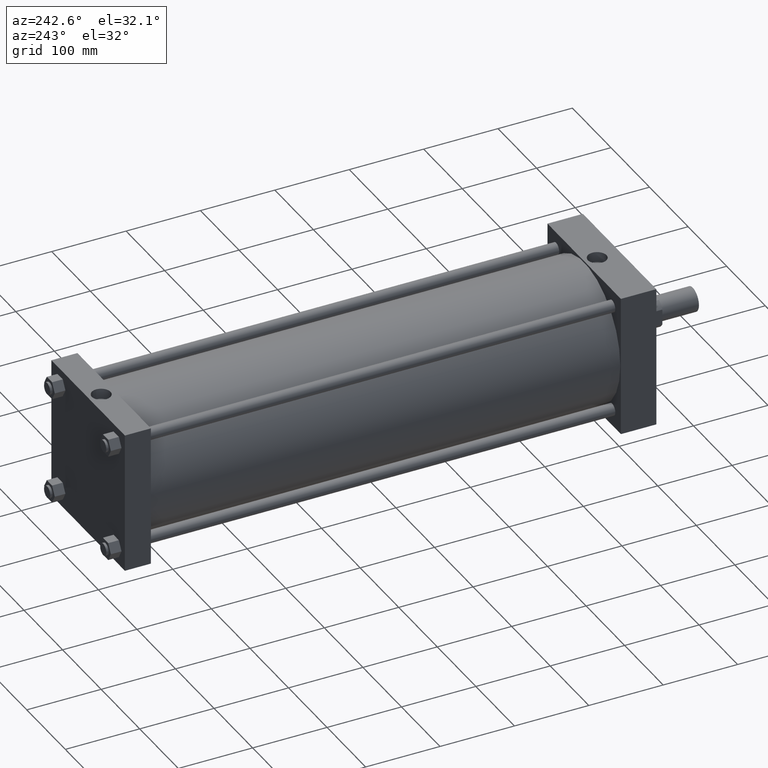
[diagram: clean part render]
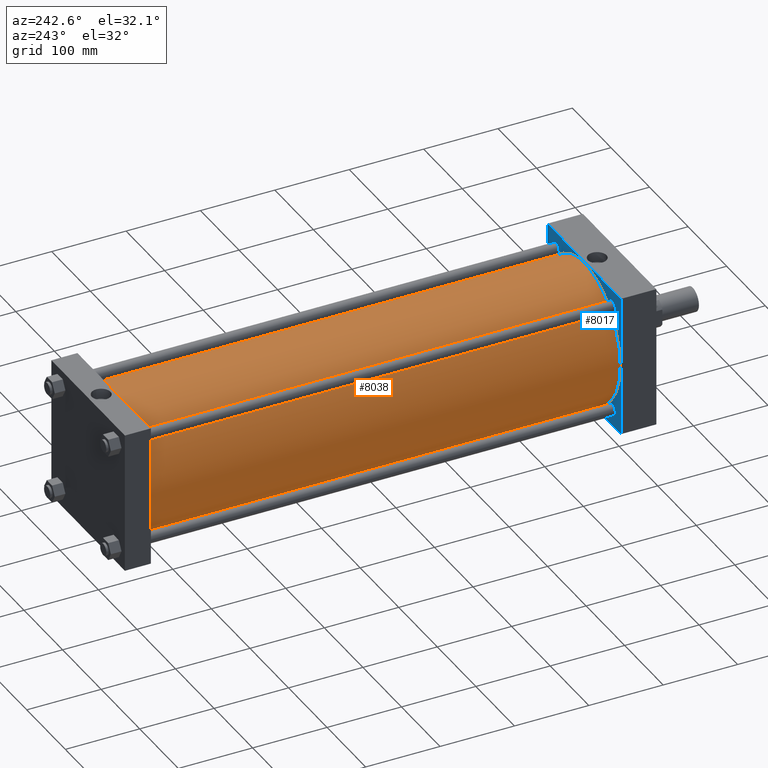
[diagram: same view with the hole feature highlighted: cylindrical wall and planar end face, labeled with their STEP entity ids]
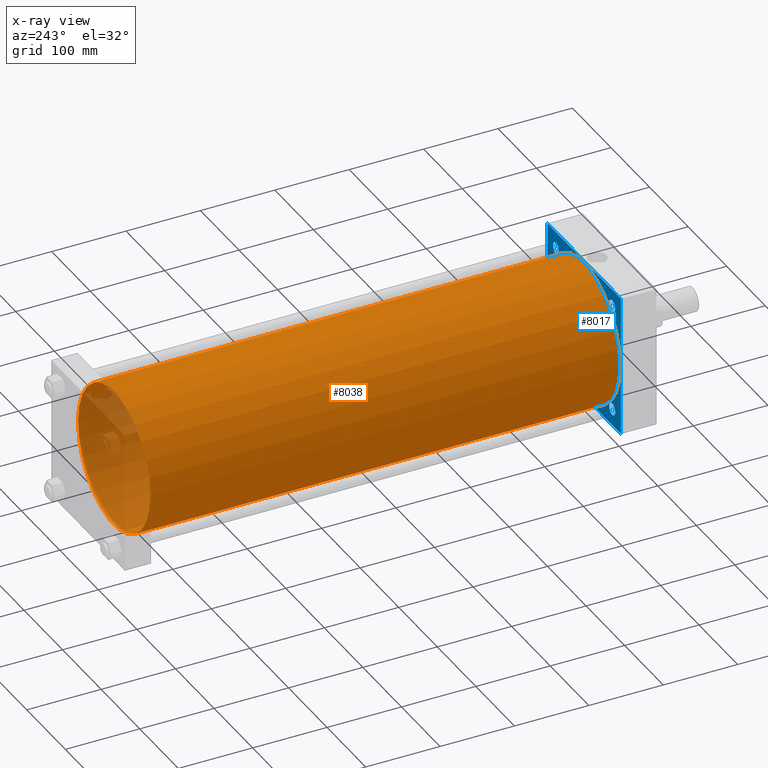
[diagram: x-ray of the same camera — body ghosted, the hole faces saturated]
A machine part, auxiliary view. The highlighted faces form one hole feature of diameter 187.325 mm: the cylindrical wall (entity #8038, orange) and its adjacent planar end face (entity #8017, blue) — they share a circular edge in the B-rep.
The next image is the same camera in x-ray (body ghosted, the hole faces saturated) — the bore reads through the body.
Wall:
#536=EDGE_CURVE('',#542,#542,#537,.T.);
#537=CIRCLE('',#538,9.366250000E+001);
#538=AXIS2_PLACEMENT_3D('',#539,#540,#541);
#539=CARTESIAN_POINT('',(0.000000000E+000,9.525000000E+001,0.000000000E+000));
#540=DIRECTION('',(0.0E+000,1.0E+000,0.0E+000));
#541=DIRECTION('',(1.0E+000,0.0E+000,0.0E+000));
#542=VERTEX_POINT('',#543);
#543=CARTESIAN_POINT('',(9.366250000E+001,9.525000000E+001,0.000000000E+000));
#1192=FACE_OUTER_BOUND('',#1194,.T.);
#1193=FACE_BOUND('',#1195,.T.);
#1194=EDGE_LOOP('',(#1196));
#1195=EDGE_LOOP('',(#1205));
#1196=ORIENTED_EDGE('',*,*,#1197,.F.);
#1197=EDGE_CURVE('',#1203,#1203,#1198,.T.);
#1198=CIRCLE('',#1199,9.366250000E+001);
#1199=AXIS2_PLACEMENT_3D('',#1200,#1201,#1202);
#1200=CARTESIAN_POINT('',(0.000000000E+000,7.270750000E+002,0.000000000E+000));
#1201=DIRECTION('',(0.0E+000,1.0E+000,0.0E+000));
#1202=DIRECTION('',(1.0E+000,0.0E+000,0.0E+000));
#1203=VERTEX_POINT('',#1204);
#1204=CARTESIAN_POINT('',(9.366250000E+001,7.270750000E+002,0.000000000E+000));
#1205=ORIENTED_EDGE('',*,*,#536,.T.);
#1206=CYLINDRICAL_SURFACE('',#1207,9.366250000E+001);
#1207=AXIS2_PLACEMENT_3D('',#1208,#1209,#1210);
#1208=CARTESIAN_POINT('',(0.000000000E+000,7.270750000E+002,0.000000000E+000));
#1209=DIRECTION('',(0.0E+000,-1.0E+000,0.0E+000));
#1210=DIRECTION('',(0.0E+000,0.0E+000,-1.0E+000));
#8038=ADVANCED_FACE('',(#1192,#1193),#1206,.T.);
End face:
#455=FACE_OUTER_BOUND('',#461,.T.);
#456=FACE_BOUND('',#462,.T.);
#457=FACE_BOUND('',#463,.T.);
#458=FACE_BOUND('',#464,.T.);
#459=FACE_BOUND('',#465,.T.);
#460=FACE_BOUND('',#466,.T.);
#461=EDGE_LOOP('',(#467));
#462=EDGE_LOOP('',(#476));
#463=EDGE_LOOP('',(#485,#486,#487,#488));
#464=EDGE_LOOP('',(#517));
#465=EDGE_LOOP('',(#526));
#466=EDGE_LOOP('',(#535));
#467=ORIENTED_EDGE('',*,*,#468,.F.);
#468=EDGE_CURVE('',#474,#474,#469,.T.);
#469=CIRCLE('',#470,7.937500000E+000);
#470=AXIS2_PLACEMENT_3D('',#471,#472,#473);
#471=CARTESIAN_POINT('',(7.277100000E+001,9.525000000E+001,7.277100000E+001));
#472=DIRECTION('',(0.0E+000,1.0E+000,0.0E+000));
#473=DIRECTION('',(1.0E+000,0.0E+000,0.0E+000));
#474=VERTEX_POINT('',#475);
#475=CARTESIAN_POINT('',(7.277100000E+001,9.525000000E+001,6.483350000E+001));
#476=ORIENTED_EDGE('',*,*,#477,.F.);
#477=EDGE_CURVE('',#483,#483,#478,.T.);
#478=CIRCLE('',#479,7.937500000E+000);
#479=AXIS2_PLACEMENT_3D('',#480,#481,#482);
#480=CARTESIAN_POINT('',(7.277100000E+001,9.525000000E+001,-7.277100000E+001));
#481=DIRECTION('',(0.0E+000,1.0E+000,0.0E+000));
#482=DIRECTION('',(1.0E+000,0.0E+000,0.0E+000));
#483=VERTEX_POINT('',#484);
#484=CARTESIAN_POINT('',(7.277100000E+001,9.525000000E+001,-8.070850000E+001));
#485=ORIENTED_EDGE('',*,*,#489,.F.);
#486=ORIENTED_EDGE('',*,*,#498,.T.);
#487=ORIENTED_EDGE('',*,*,#505,.F.);
#488=ORIENTED_EDGE('',*,*,#512,.F.);
#489=EDGE_CURVE('',#494,#495,#490,.T.);
#490=LINE('',#491,#492);
#491=CARTESIAN_POINT('',(9.525000000E+001,9.525000000E+001,-9.525000000E+001));
#492=VECTOR('',#493,1.0E+000);
#493=DIRECTION('',(0.0E+000,0.0E+000,1.0E+000));
#494=VERTEX_POINT('',#496);
#495=VERTEX_POINT('',#497);
#496=CARTESIAN_POINT('',(9.525000000E+001,9.525000000E+001,-9.525000000E+001));
#497=CARTESIAN_POINT('',(9.525000000E+001,9.525000000E+001,9.525000000E+001));
#498=EDGE_CURVE('',#494,#503,#499,.T.);
#499=LINE('',#500,#501);
#500=CARTESIAN_POINT('',(9.525000000E+001,9.525000000E+001,-9.525000000E+001));
#501=VECTOR('',#502,1.0E+000);
#502=DIRECTION('',(-1.0E+000,0.0E+000,0.0E+000));
#503=VERTEX_POINT('',#504);
#504=CARTESIAN_POINT('',(-9.525000000E+001,9.525000000E+001,-9.525000000E+001));
#505=EDGE_CURVE('',#510,#503,#506,.T.);
#506=LINE('',#507,#508);
#507=CARTESIAN_POINT('',(-9.525000000E+001,9.525000000E+001,9.525000000E+001));
#508=VECTOR('',#509,1.0E+000);
#509=DIRECTION('',(0.0E+000,0.0E+000,-1.0E+000));
#510=VERTEX_POINT('',#511);
#511=CARTESIAN_POINT('',(-9.525000000E+001,9.525000000E+001,9.525000000E+001));
#512=EDGE_CURVE('',#495,#510,#513,.T.);
#513=LINE('',#514,#515);
#514=CARTESIAN_POINT('',(9.525000000E+001,9.525000000E+001,9.525000000E+001));
#515=VECTOR('',#516,1.0E+000);
#516=DIRECTION('',(-1.0E+000,0.0E+000,0.0E+000));
#517=ORIENTED_EDGE('',*,*,#518,.F.);
#518=EDGE_CURVE('',#524,#524,#519,.T.);
#519=CIRCLE('',#520,7.937500000E+000);
#520=AXIS2_PLACEMENT_3D('',#521,#522,#523);
#521=CARTESIAN_POINT('',(-7.277100000E+001,9.525000000E+001,-7.277100000E+001));
#522=DIRECTION('',(0.0E+000,1.0E+000,0.0E+000));
#523=DIRECTION('',(1.0E+000,0.0E+000,0.0E+000));
#524=VERTEX_POINT('',#525);
#525=CARTESIAN_POINT('',(-6.483350000E+001,9.525000000E+001,-7.277100000E+001));
#526=ORIENTED_EDGE('',*,*,#527,.F.);
#527=EDGE_CURVE('',#533,#533,#528,.T.);
#528=CIRCLE('',#529,7.937500000E+000);
#529=AXIS2_PLACEMENT_3D('',#530,#531,#532);
#530=CARTESIAN_POINT('',(-7.277100000E+001,9.525000000E+001,7.277100000E+001));
#531=DIRECTION('',(0.0E+000,1.0E+000,0.0E+000));
#532=DIRECTION('',(1.0E+000,0.0E+000,0.0E+000));
#533=VERTEX_POINT('',#534);
#534=CARTESIAN_POINT('',(-7.277100000E+001,9.525000000E+001,6.483350000E+001));
#535=ORIENTED_EDGE('',*,*,#536,.F.);
#536=EDGE_CURVE('',#542,#542,#537,.T.);
#537=CIRCLE('',#538,9.366250000E+001);
#538=AXIS2_PLACEMENT_3D('',#539,#540,#541);
#539=CARTESIAN_POINT('',(0.000000000E+000,9.525000000E+001,0.000000000E+000));
#540=DIRECTION('',(0.0E+000,1.0E+000,0.0E+000));
#541=DIRECTION('',(1.0E+000,0.0E+000,0.0E+000));
#542=VERTEX_POINT('',#543);
#543=CARTESIAN_POINT('',(9.366250000E+001,9.525000000E+001,0.000000000E+000));
#544=PLANE('',#545);
#545=AXIS2_PLACEMENT_3D('',#546,#547,#548);
#546=CARTESIAN_POINT('',(9.525000000E+001,9.525000000E+001,-9.525000000E+001));
#547=DIRECTION('',(0.0E+000,-1.0E+000,0.0E+000));
#548=DIRECTION('',(0.0E+000,0.0E+000,-1.0E+000));
#8017=ADVANCED_FACE('',(#455,#456,#457,#458,#459,#460),#544,.F.);